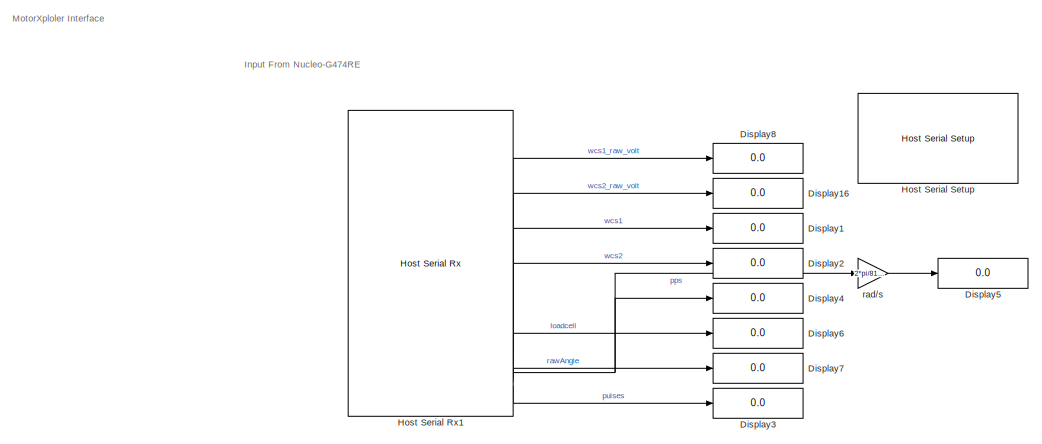
[diagram: root canvas - part 1/3, top left region]
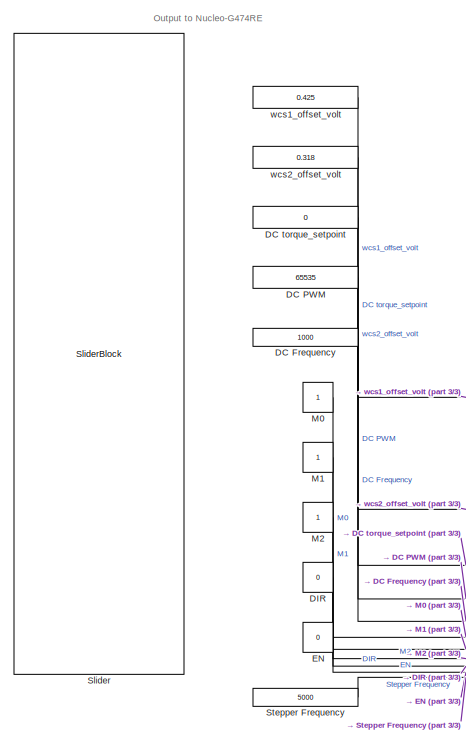
[diagram: root canvas - part 2/3, bottom left region]
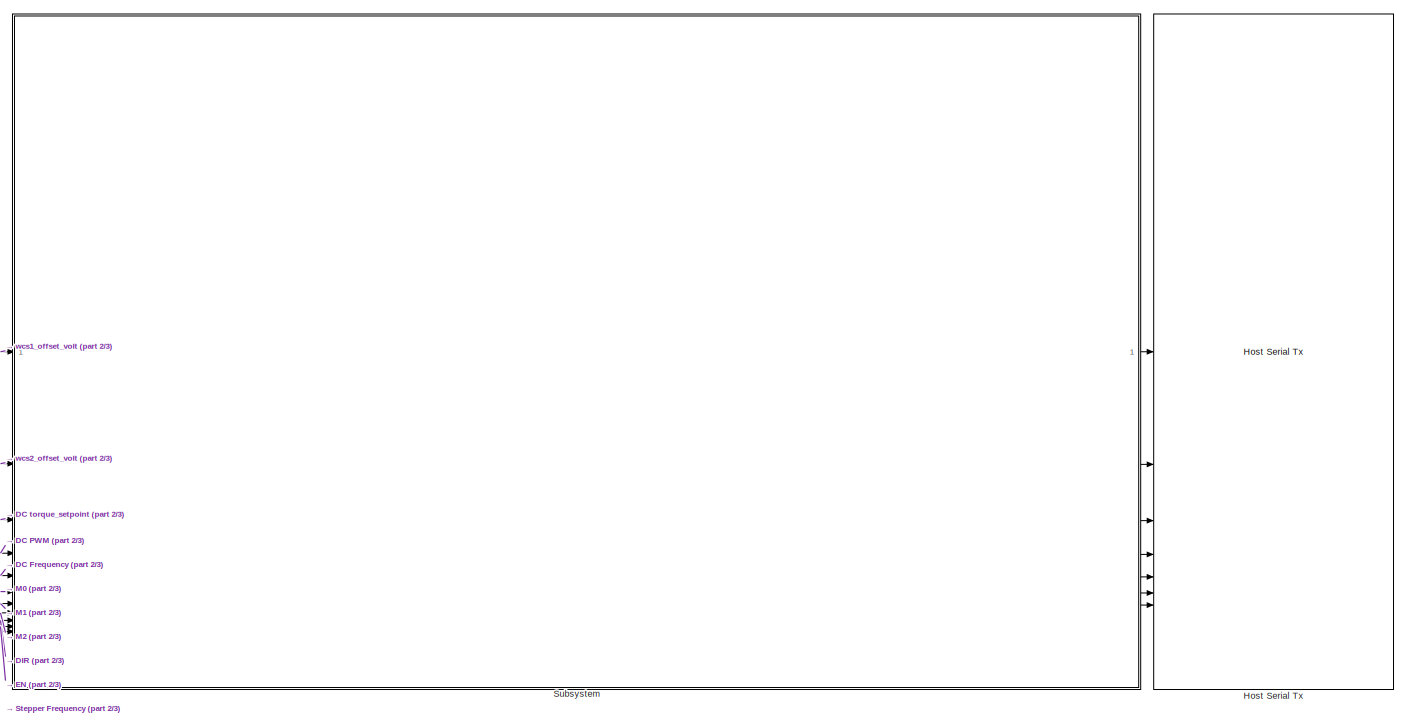
[diagram: root canvas - part 3/3, bottom center region]
MODEL slx_bacf4c4e5da9
KIND model
CONFIG AbsTol = auto
CONFIG EnableMultiTasking = off
CONFIG FixedStep = auto
CONFIG MaxStep = auto
CONFIG MinStep = auto
CONFIG RelTol = 1e-3
CONFIG SampleTimeConstraint = Unconstrained
CONFIG SolverName = VariableStepAuto
CONFIG StartTime = 0.0
CONFIG StopTime = inf
BLOCK [Constant] DC Frequency
  Value = 1000
BLOCK [Constant] DC PWM
  Value = 65535
BLOCK [Constant] DC torque_setpoint
  Value = 0
BLOCK [Constant] DIR
  OutDataTypeStr = uint8
  Value = 0
BLOCK [Display] Display1
  Decimation = 1
BLOCK [Display] Display16
  Decimation = 1
BLOCK [Display] Display2
  Decimation = 1
BLOCK [Display] Display3
  Decimation = 1
BLOCK [Display] Display4
  Decimation = 1
BLOCK [Display] Display5
  Decimation = 1
BLOCK [Display] Display6
  Decimation = 1
BLOCK [Display] Display7
  Decimation = 1
BLOCK [Display] Display8
  Decimation = 1
BLOCK [Constant] EN
  OutDataTypeStr = uint8
  Value = 0
BLOCK [Reference] Host Serial Rx1  REF=amg_usbconverter_n_connect_lib/Host Serial Rx
  SourceBlock = amg_usbconverter_n_connect_lib/Host Serial Rx
  SourceProductName = aMG USB Converter N
  SourceType = amg_usbconverter_n_connect
BLOCK [Reference] Host Serial Setup  REF=amg_usbconverter_n_connect_lib/Host Serial Setup
  SourceBlock = amg_usbconverter_n_connect_lib/Host Serial Setup
  SourceProductName = aMG USB Converter N
  SourceType = amg_usbconverter_n_connect
BLOCK [Reference] Host Serial Tx  REF=amg_usbconverter_n_connect_lib/Host Serial Tx
  SourceBlock = amg_usbconverter_n_connect_lib/Host Serial Tx
  SourceProductName = aMG USB Converter N
  SourceType = amg_usbconverter_n_connect
BLOCK [Constant] M0
  OutDataTypeStr = uint8
BLOCK [Constant] M1
  OutDataTypeStr = uint8
BLOCK [Constant] M2
  OutDataTypeStr = uint8
BLOCK [SliderBlock] Slider
  NameLocation = left
  ScaleMax = 65535
  ScaleMin = -65535
BLOCK [Constant] Stepper Frequency
  Value = 5000
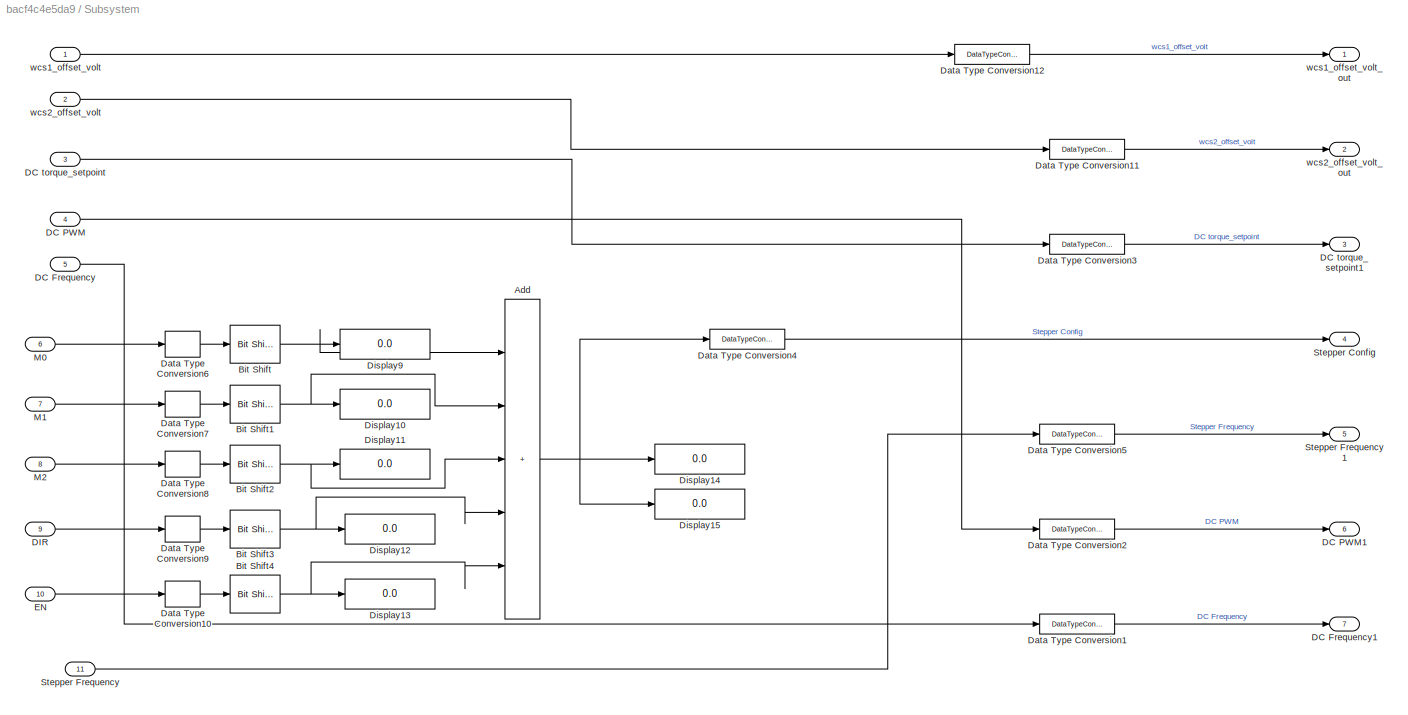
BLOCK [SubSystem] Subsystem
BLOCK [Sum] Subsystem/Add
  IconShape = rectangular
  Inputs = +++++
BLOCK [Reference] Subsystem/Bit Shift  REF=hdlsllib/Logic and Bit
Operations/Bit Shift
  SourceBlock = hdlsllib/Logic and Bit\nOperations/Bit Shift
  SourceType = Bit Shift
BLOCK [Reference] Subsystem/Bit Shift1  REF=hdlsllib/Logic and Bit
Operations/Bit Shift
  SourceBlock = hdlsllib/Logic and Bit\nOperations/Bit Shift
  SourceType = Bit Shift
BLOCK [Reference] Subsystem/Bit Shift2  REF=hdlsllib/Logic and Bit
Operations/Bit Shift
  SourceBlock = hdlsllib/Logic and Bit\nOperations/Bit Shift
  SourceType = Bit Shift
BLOCK [Reference] Subsystem/Bit Shift3  REF=hdlsllib/Logic and Bit
Operations/Bit Shift
  SourceBlock = hdlsllib/Logic and Bit\nOperations/Bit Shift
  SourceType = Bit Shift
BLOCK [Reference] Subsystem/Bit Shift4  REF=hdlsllib/Logic and Bit
Operations/Bit Shift
  SourceBlock = hdlsllib/Logic and Bit\nOperations/Bit Shift
  SourceType = Bit Shift
BLOCK [Inport] Subsystem/DC Frequency
  Port = 5
BLOCK [Outport] Subsystem/DC Frequency1
  Port = 7
BLOCK [Inport] Subsystem/DC PWM
  Port = 4
BLOCK [Outport] Subsystem/DC PWM1
  Port = 6
BLOCK [Inport] Subsystem/DC torque_setpoint
  Port = 3
BLOCK [Outport] Subsystem/DC torque_setpoint1
  Port = 3
BLOCK [Inport] Subsystem/DIR
  Port = 9
BLOCK [DataTypeConversion] Subsystem/Data Type Conversion1
  OutDataTypeStr = int32
  RndMeth = Floor
  SaturateOnIntegerOverflow = off
BLOCK [DataTypeConversion] Subsystem/Data Type Conversion10
  OutDataTypeStr = uint8
  RndMeth = Floor
  SaturateOnIntegerOverflow = off
BLOCK [DataTypeConversion] Subsystem/Data Type Conversion11
  OutDataTypeStr = single
  RndMeth = Floor
  SaturateOnIntegerOverflow = off
BLOCK [DataTypeConversion] Subsystem/Data Type Conversion12
  OutDataTypeStr = single
  RndMeth = Floor
  SaturateOnIntegerOverflow = off
BLOCK [DataTypeConversion] Subsystem/Data Type Conversion2
  OutDataTypeStr = int32
  RndMeth = Floor
  SaturateOnIntegerOverflow = off
BLOCK [DataTypeConversion] Subsystem/Data Type Conversion3
  OutDataTypeStr = single
  RndMeth = Floor
  SaturateOnIntegerOverflow = off
BLOCK [DataTypeConversion] Subsystem/Data Type Conversion4
  OutDataTypeStr = uint8
  RndMeth = Floor
  SaturateOnIntegerOverflow = off
BLOCK [DataTypeConversion] Subsystem/Data Type Conversion5
  OutDataTypeStr = int32
  RndMeth = Floor
  SaturateOnIntegerOverflow = off
BLOCK [DataTypeConversion] Subsystem/Data Type Conversion6
  OutDataTypeStr = uint8
  RndMeth = Floor
  SaturateOnIntegerOverflow = off
BLOCK [DataTypeConversion] Subsystem/Data Type Conversion7
  OutDataTypeStr = uint8
  RndMeth = Floor
  SaturateOnIntegerOverflow = off
BLOCK [DataTypeConversion] Subsystem/Data Type Conversion8
  OutDataTypeStr = uint8
  RndMeth = Floor
  SaturateOnIntegerOverflow = off
BLOCK [DataTypeConversion] Subsystem/Data Type Conversion9
  OutDataTypeStr = uint8
  RndMeth = Floor
  SaturateOnIntegerOverflow = off
BLOCK [Display] Subsystem/Display10
  Decimation = 1
  Format = binary (Stored Integer)
BLOCK [Display] Subsystem/Display11
  Decimation = 1
  Format = binary (Stored Integer)
BLOCK [Display] Subsystem/Display12
  Decimation = 1
  Format = binary (Stored Integer)
BLOCK [Display] Subsystem/Display13
  Decimation = 1
  Format = binary (Stored Integer)
BLOCK [Display] Subsystem/Display14
  Decimation = 1
  Format = binary (Stored Integer)
BLOCK [Display] Subsystem/Display15
  Decimation = 1
BLOCK [Display] Subsystem/Display9
  Decimation = 1
  Format = binary (Stored Integer)
BLOCK [Inport] Subsystem/EN
  Port = 10
BLOCK [Inport] Subsystem/M0
  Port = 6
BLOCK [Inport] Subsystem/M1
  Port = 7
BLOCK [Inport] Subsystem/M2
  Port = 8
BLOCK [Outport] Subsystem/Stepper Config
  Port = 4
BLOCK [Inport] Subsystem/Stepper Frequency
  Port = 11
BLOCK [Outport] Subsystem/Stepper Frequency1
  Port = 5
BLOCK [Inport] Subsystem/wcs1_offset_volt
BLOCK [Outport] Subsystem/wcs1_offset_volt_out
BLOCK [Inport] Subsystem/wcs2_offset_volt
  Port = 2
BLOCK [Outport] Subsystem/wcs2_offset_volt_out
  Port = 2
BLOCK [Gain] rad//s
  Gain = 2*pi/8192
BLOCK [Constant] wcs1_offset_volt
  OutDataTypeStr = single
  Value = 0.425
BLOCK [Constant] wcs2_offset_volt
  OutDataTypeStr = single
  Value = 0.318
ANNOTATION (root): Input From Nucleo-G474RE
ANNOTATION (root): MotorXploler Interface
ANNOTATION (root): Output to Nucleo-G474RE
LINE DC Frequency:1 -> Subsystem:5
LINE DC PWM:1 -> Subsystem:4
LINE DC torque_setpoint:1 -> Subsystem:3
LINE DIR:1 -> Subsystem:9
LINE EN:1 -> Subsystem:10
LINE Host Serial Rx1:2 -> Display8:1
LINE Host Serial Rx1:3 -> Display16:1
LINE Host Serial Rx1:4 -> Display1:1
LINE Host Serial Rx1:5 -> Display2:1
NET Host Serial Rx1:6 -> Display4:1, rad//s:1
LINE Host Serial Rx1:7 -> Display6:1
LINE Host Serial Rx1:8 -> Display7:1
LINE Host Serial Rx1:9 -> Display3:1
LINE M0:1 -> Subsystem:6
LINE M1:1 -> Subsystem:7
LINE M2:1 -> Subsystem:8
LINE Stepper Frequency:1 -> Subsystem:11
NET Subsystem/Add:1 -> Subsystem/Data Type Conversion4:1, Subsystem/Display14:1, Subsystem/Display15:1
NET Subsystem/Bit Shift1:1 -> Subsystem/Add:2, Subsystem/Display10:1
NET Subsystem/Bit Shift2:1 -> Subsystem/Add:3, Subsystem/Display11:1
NET Subsystem/Bit Shift3:1 -> Subsystem/Add:4, Subsystem/Display12:1
NET Subsystem/Bit Shift4:1 -> Subsystem/Add:5, Subsystem/Display13:1
NET Subsystem/Bit Shift:1 -> Subsystem/Add:1, Subsystem/Display9:1
LINE Subsystem/DC Frequency:1 -> Subsystem/Data Type Conversion1:1
LINE Subsystem/DC PWM:1 -> Subsystem/Data Type Conversion2:1
LINE Subsystem/DC torque_setpoint:1 -> Subsystem/Data Type Conversion3:1
LINE Subsystem/DIR:1 -> Subsystem/Data Type Conversion9:1
LINE Subsystem/Data Type Conversion10:1 -> Subsystem/Bit Shift4:1
LINE Subsystem/Data Type Conversion11:1 -> Subsystem/wcs2_offset_volt_out:1
LINE Subsystem/Data Type Conversion12:1 -> Subsystem/wcs1_offset_volt_out:1
LINE Subsystem/Data Type Conversion1:1 -> Subsystem/DC Frequency1:1
LINE Subsystem/Data Type Conversion2:1 -> Subsystem/DC PWM1:1
LINE Subsystem/Data Type Conversion3:1 -> Subsystem/DC torque_setpoint1:1
LINE Subsystem/Data Type Conversion4:1 -> Subsystem/Stepper Config:1
LINE Subsystem/Data Type Conversion5:1 -> Subsystem/Stepper Frequency1:1
LINE Subsystem/Data Type Conversion6:1 -> Subsystem/Bit Shift:1
LINE Subsystem/Data Type Conversion7:1 -> Subsystem/Bit Shift1:1
LINE Subsystem/Data Type Conversion8:1 -> Subsystem/Bit Shift2:1
LINE Subsystem/Data Type Conversion9:1 -> Subsystem/Bit Shift3:1
LINE Subsystem/EN:1 -> Subsystem/Data Type Conversion10:1
LINE Subsystem/M0:1 -> Subsystem/Data Type Conversion6:1
LINE Subsystem/M1:1 -> Subsystem/Data Type Conversion7:1
LINE Subsystem/M2:1 -> Subsystem/Data Type Conversion8:1
LINE Subsystem/Stepper Frequency:1 -> Subsystem/Data Type Conversion5:1
LINE Subsystem/wcs1_offset_volt:1 -> Subsystem/Data Type Conversion12:1
LINE Subsystem/wcs2_offset_volt:1 -> Subsystem/Data Type Conversion11:1
LINE Subsystem:1 -> Host Serial Tx:1
LINE Subsystem:2 -> Host Serial Tx:2
LINE Subsystem:3 -> Host Serial Tx:3
LINE Subsystem:4 -> Host Serial Tx:4
LINE Subsystem:5 -> Host Serial Tx:5
LINE Subsystem:6 -> Host Serial Tx:6
LINE Subsystem:7 -> Host Serial Tx:7
LINE rad//s:1 -> Display5:1
LINE wcs1_offset_volt:1 -> Subsystem:1
LINE wcs2_offset_volt:1 -> Subsystem:2
note: NET lines group one-source signal fan-out (src -> all destinations, sorted); 1:1 wires keep LINE
